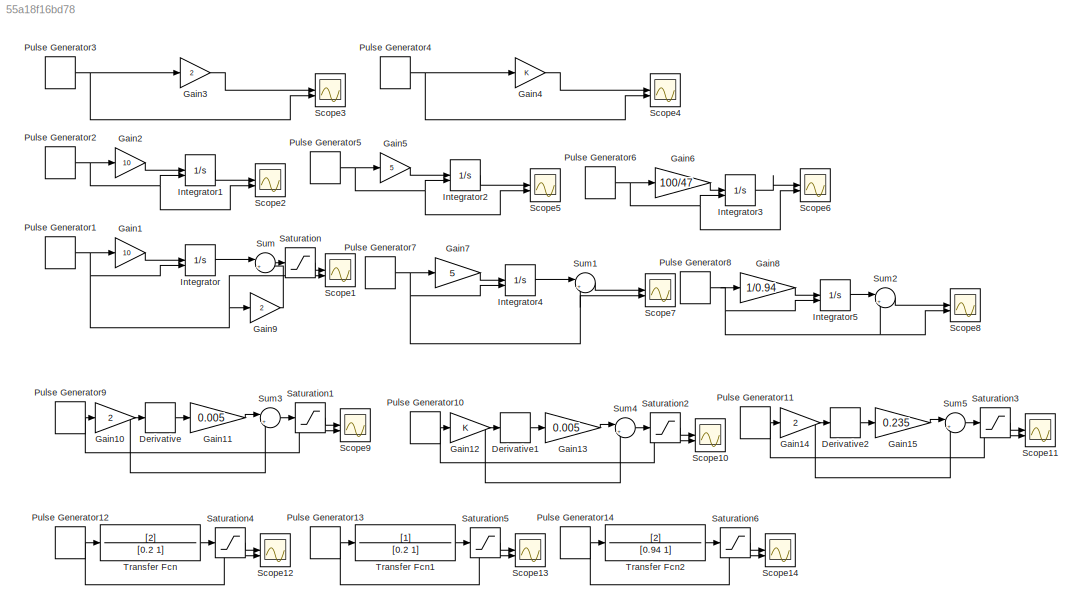
MODEL slx_55a18f16bd78
KIND model
CONFIG AbsTol = auto
CONFIG EnableMultiTasking = off
CONFIG FixedStep = auto
CONFIG MaxStep = auto
CONFIG MinStep = auto
CONFIG RelTol = 1e-3
CONFIG SampleTimeConstraint = Unconstrained
CONFIG SolverName = VariableStepAuto
CONFIG StartTime = 0.0
CONFIG StopTime = 40
BLOCK [Derivative] Derivative
BLOCK [Derivative] Derivative1
BLOCK [Derivative] Derivative2
BLOCK [Gain] Gain1
  Gain = 10
BLOCK [Gain] Gain10
  Gain = 2
BLOCK [Gain] Gain11
  Gain = 0.005
BLOCK [Gain] Gain12
BLOCK [Gain] Gain13
  Gain = 0.005
BLOCK [Gain] Gain14
  Gain = 2
BLOCK [Gain] Gain15
  Gain = 0.235
BLOCK [Gain] Gain2
  Gain = 10
BLOCK [Gain] Gain3
  Gain = 2
BLOCK [Gain] Gain4
BLOCK [Gain] Gain5
  Gain = 5
BLOCK [Gain] Gain6
  Gain = 100/47
BLOCK [Gain] Gain7
  Gain = 5
BLOCK [Gain] Gain8
  Gain = 1/0.94
BLOCK [Gain] Gain9
  Gain = 2
BLOCK [Integrator] Integrator
  ExternalReset = falling
  LimitOutput = on
  UpperSaturationLimit = 10
BLOCK [Integrator] Integrator1
  ExternalReset = falling
  LimitOutput = on
  UpperSaturationLimit = 9
BLOCK [Integrator] Integrator2
  ExternalReset = falling
  LimitOutput = on
  UpperSaturationLimit = 9
BLOCK [Integrator] Integrator3
  ExternalReset = falling
  LimitOutput = on
  UpperSaturationLimit = 9
BLOCK [Integrator] Integrator4
  ExternalReset = falling
  LimitOutput = on
  UpperSaturationLimit = 9
BLOCK [Integrator] Integrator5
  ExternalReset = falling
  LimitOutput = on
  UpperSaturationLimit = 9
BLOCK [DiscretePulseGenerator] Pulse Generator1
  Amplitude = 5
  PhaseDelay = 0.1
  PulseType = Time based
  PulseWidth = 10
BLOCK [DiscretePulseGenerator] Pulse Generator10
  Amplitude = 5
  Period = 1
  PhaseDelay = 0.2
  PulseType = Time based
  PulseWidth = 50
BLOCK [DiscretePulseGenerator] Pulse Generator11
  Amplitude = 5
  Period = 1
  PhaseDelay = 0.5
  PulseType = Time based
  PulseWidth = 50
BLOCK [DiscretePulseGenerator] Pulse Generator12
  Amplitude = 5
  Period = 9.1
  PhaseDelay = 2
  PulseType = Time based
  PulseWidth = 90
BLOCK [DiscretePulseGenerator] Pulse Generator13
  Amplitude = 5
  Period = 9.1
  PhaseDelay = 2
  PulseType = Time based
  PulseWidth = 90
BLOCK [DiscretePulseGenerator] Pulse Generator14
  Amplitude = 5
  Period = 9.1
  PhaseDelay = 2
  PulseType = Time based
  PulseWidth = 50
BLOCK [DiscretePulseGenerator] Pulse Generator2
  Amplitude = 5
  Period = 1
  PulseType = Time based
  PulseWidth = 50
BLOCK [DiscretePulseGenerator] Pulse Generator3
  Amplitude = 5
  Period = 1
  PulseType = Time based
  PulseWidth = 50
BLOCK [DiscretePulseGenerator] Pulse Generator4
  Amplitude = 5
  Period = 1
  PulseType = Time based
  PulseWidth = 50
BLOCK [DiscretePulseGenerator] Pulse Generator5
  Amplitude = 5
  Period = 1
  PulseType = Time based
  PulseWidth = 50
BLOCK [DiscretePulseGenerator] Pulse Generator6
  Amplitude = 5
  Period = 1
  PulseType = Time based
  PulseWidth = 50
BLOCK [DiscretePulseGenerator] Pulse Generator7
  Amplitude = 5
  PhaseDelay = 0.1
  PulseType = Time based
  PulseWidth = 10
BLOCK [DiscretePulseGenerator] Pulse Generator8
  Amplitude = 5
  PhaseDelay = 0.1
  PulseType = Time based
  PulseWidth = 10
BLOCK [DiscretePulseGenerator] Pulse Generator9
  Amplitude = 5
  Period = 1
  PhaseDelay = 0.2
  PulseType = Time based
  PulseWidth = 50
BLOCK [Saturate] Saturation
  UpperLimit = 9
BLOCK [Saturate] Saturation1
  LowerLimit = -100
  UpperLimit = 9
BLOCK [Saturate] Saturation2
  LowerLimit = -100
  UpperLimit = 9
BLOCK [Saturate] Saturation3
  UpperLimit = 9
BLOCK [Saturate] Saturation4
  LowerLimit = -100
  UpperLimit = 9
BLOCK [Saturate] Saturation5
  LowerLimit = -100
  UpperLimit = 9
BLOCK [Saturate] Saturation6
  LowerLimit = -100
  UpperLimit = 9
BLOCK [Scope] Scope1
  Floating = off
  NumInputPorts = 2
  ScopeSpecificationString = Simulink.scopes.TimeScopeBlockCfg('CurrentConfiguration', extmgr.ConfigurationSet(extmgr.Configuration('Core','General UI',true),extmgr.Configuration('Core','Source UI',true),extmgr.Configuration('Sources','WiredSimulink',true,'DataLoggingVariableName','ScopeData1'),extmgr.Configuration('Visuals','Time Domain',true,'SerializedDisplays',{struct('MinYLimReal','-1.125','MaxYLimReal','10.125','YLabelR...<+1409ch>
BLOCK [Scope] Scope10
  Floating = off
  NumInputPorts = 2
  ScopeSpecificationString = Simulink.scopes.TimeScopeBlockCfg('CurrentConfiguration', extmgr.ConfigurationSet(extmgr.Configuration('Core','General UI',true),extmgr.Configuration('Core','Source UI',true),extmgr.Configuration('Sources','WiredSimulink',true,'DataLoggingVariableName','ScopeData9'),extmgr.Configuration('Visuals','Time Domain',true,'SerializedDisplays',{struct('MinYLimReal','-1.80059','MaxYLimReal','10.20007','YLa...<+1423ch>
BLOCK [Scope] Scope11
  Floating = off
  NumInputPorts = 2
  ScopeSpecificationString = Simulink.scopes.TimeScopeBlockCfg('CurrentConfiguration', extmgr.ConfigurationSet(extmgr.Configuration('Core','General UI',true),extmgr.Configuration('Core','Source UI',true),extmgr.Configuration('Sources','WiredSimulink',true,'DataLoggingVariableName','ScopeData10'),extmgr.Configuration('Visuals','Time Domain',true,'SerializedDisplays',{struct('MinYLimReal','-1.6875','MaxYLimReal','10.1875','YLab...<+1418ch>
BLOCK [Scope] Scope12
  Floating = off
  NumInputPorts = 2
  ScopeSpecificationString = Simulink.scopes.TimeScopeBlockCfg('CurrentConfiguration', extmgr.ConfigurationSet(extmgr.Configuration('Core','General UI',true),extmgr.Configuration('Core','Source UI',true),extmgr.Configuration('Sources','WiredSimulink',true,'DataLoggingVariableName','ScopeData11'),extmgr.Configuration('Visuals','Time Domain',true,'SerializedDisplays',{struct('MinYLimReal','-1.125','MaxYLimReal','10.125','YLabel...<+1412ch>
BLOCK [Scope] Scope13
  Floating = off
  NumInputPorts = 2
  ScopeSpecificationString = Simulink.scopes.TimeScopeBlockCfg('CurrentConfiguration', extmgr.ConfigurationSet(extmgr.Configuration('Core','General UI',true),extmgr.Configuration('Core','Source UI',true),extmgr.Configuration('Sources','WiredSimulink',true,'DataLoggingVariableName','ScopeData12'),extmgr.Configuration('Visuals','Time Domain',true,'SerializedDisplays',{struct('MinYLimReal','-0.625','MaxYLimReal','5.625','YLabelR...<+1408ch>
BLOCK [Scope] Scope14
  Floating = off
  NumInputPorts = 2
  ScopeSpecificationString = Simulink.scopes.TimeScopeBlockCfg('CurrentConfiguration', extmgr.ConfigurationSet(extmgr.Configuration('Core','General UI',true),extmgr.Configuration('Core','Source UI',true),extmgr.Configuration('Sources','WiredSimulink',true,'DataLoggingVariableName','ScopeData13'),extmgr.Configuration('Visuals','Time Domain',true,'SerializedDisplays',{struct('MinYLimReal','-1.125','MaxYLimReal','10.125','YLabel...<+1412ch>
BLOCK [Scope] Scope2
  Floating = off
  NumInputPorts = 2
  ScopeSpecificationString = Simulink.scopes.TimeScopeBlockCfg('CurrentConfiguration', extmgr.ConfigurationSet(extmgr.Configuration('Core','General UI',true),extmgr.Configuration('Core','Source UI',true),extmgr.Configuration('Sources','WiredSimulink',true),extmgr.Configuration('Visuals','Time Domain',true,'SerializedDisplays',{struct('MinYLimReal','-1.125','MaxYLimReal','10.125','YLabelReal','','MinYLimMag','0.00000','MaxYLim...<+1371ch>
BLOCK [Scope] Scope3
  Floating = off
  NumInputPorts = 2
  ScopeSpecificationString = Simulink.scopes.TimeScopeBlockCfg('CurrentConfiguration', extmgr.ConfigurationSet(extmgr.Configuration('Core','General UI',true),extmgr.Configuration('Core','Source UI',true),extmgr.Configuration('Sources','WiredSimulink',true,'DataLoggingVariableName','ScopeData2'),extmgr.Configuration('Visuals','Time Domain',true,'SerializedDisplays',{struct('MinYLimReal','-1.125','MaxYLimReal','10.125','YLabelR...<+1380ch>
BLOCK [Scope] Scope4
  Floating = off
  NumInputPorts = 2
  ScopeSpecificationString = Simulink.scopes.TimeScopeBlockCfg('CurrentConfiguration', extmgr.ConfigurationSet(extmgr.Configuration('Core','General UI',true),extmgr.Configuration('Core','Source UI',true),extmgr.Configuration('Sources','WiredSimulink',true,'DataLoggingVariableName','ScopeData3'),extmgr.Configuration('Visuals','Time Domain',true,'SerializedDisplays',{struct('MinYLimReal','-0.625','MaxYLimReal','5.625','YLabelRe...<+1400ch>
BLOCK [Scope] Scope5
  Floating = off
  NumInputPorts = 2
  ScopeSpecificationString = Simulink.scopes.TimeScopeBlockCfg('CurrentConfiguration', extmgr.ConfigurationSet(extmgr.Configuration('Core','General UI',true),extmgr.Configuration('Core','Source UI',true),extmgr.Configuration('Sources','WiredSimulink',true,'DataLoggingVariableName','ScopeData4'),extmgr.Configuration('Visuals','Time Domain',true,'SerializedDisplays',{struct('MinYLimReal','-1.125','MaxYLimReal','10.125','YLabelR...<+1410ch>
BLOCK [Scope] Scope6
  Floating = off
  NumInputPorts = 2
  ScopeSpecificationString = Simulink.scopes.TimeScopeBlockCfg('CurrentConfiguration', extmgr.ConfigurationSet(extmgr.Configuration('Core','General UI',true),extmgr.Configuration('Core','Source UI',true),extmgr.Configuration('Sources','WiredSimulink',true,'DataLoggingVariableName','ScopeData5'),extmgr.Configuration('Visuals','Time Domain',true,'SerializedDisplays',{struct('MinYLimReal','-0.6516','MaxYLimReal','5.86436','YLabe...<+1416ch>
BLOCK [Scope] Scope7
  Floating = off
  NumInputPorts = 2
  ScopeSpecificationString = Simulink.scopes.TimeScopeBlockCfg('CurrentConfiguration', extmgr.ConfigurationSet(extmgr.Configuration('Core','General UI',true),extmgr.Configuration('Core','Source UI',true),extmgr.Configuration('Sources','WiredSimulink',true,'DataLoggingVariableName','ScopeData6'),extmgr.Configuration('Visuals','Time Domain',true,'SerializedDisplays',{struct('MinYLimReal','-1.25','MaxYLimReal','11.25','YLabelRea...<+1398ch>
BLOCK [Scope] Scope8
  Floating = off
  NumInputPorts = 2
  ScopeSpecificationString = Simulink.scopes.TimeScopeBlockCfg('CurrentConfiguration', extmgr.ConfigurationSet(extmgr.Configuration('Core','General UI',true),extmgr.Configuration('Core','Source UI',true),extmgr.Configuration('Sources','WiredSimulink',true,'DataLoggingVariableName','ScopeData7'),extmgr.Configuration('Visuals','Time Domain',true,'SerializedDisplays',{struct('MinYLimReal','-0.75798','MaxYLimReal','6.82181','YLab...<+1411ch>
BLOCK [Scope] Scope9
  Floating = off
  NumInputPorts = 2
  ScopeSpecificationString = Simulink.scopes.TimeScopeBlockCfg('CurrentConfiguration', extmgr.ConfigurationSet(extmgr.Configuration('Core','General UI',true),extmgr.Configuration('Core','Source UI',true),extmgr.Configuration('Sources','WiredSimulink',true,'DataLoggingVariableName','ScopeData8'),extmgr.Configuration('Visuals','Time Domain',true,'SerializedDisplays',{struct('MinYLimReal','-2.47619','MaxYLimReal','10.27513','YLa...<+1422ch>
BLOCK [Sum] Sum
  Inputs = |++
BLOCK [Sum] Sum1
  Inputs = |++
BLOCK [Sum] Sum2
  Inputs = |++
BLOCK [Sum] Sum3
  Inputs = |++
BLOCK [Sum] Sum4
  Inputs = |++
BLOCK [Sum] Sum5
  Inputs = |++
BLOCK [TransferFcn] Transfer Fcn
  Denominator = [0.2 1]
  Numerator = [2]
BLOCK [TransferFcn] Transfer Fcn1
  Denominator = [0.2 1]
BLOCK [TransferFcn] Transfer Fcn2
  Denominator = [0.94 1]
  Numerator = [2]
LINE Derivative1:1 -> Gain13:1
LINE Derivative2:1 -> Gain15:1
LINE Derivative:1 -> Gain11:1
NET Gain10:1 -> Derivative:1, Sum3:2
LINE Gain11:1 -> Sum3:1
NET Gain12:1 -> Derivative1:1, Sum4:2
LINE Gain13:1 -> Sum4:1
NET Gain14:1 -> Derivative2:1, Sum5:2
LINE Gain15:1 -> Sum5:1
LINE Gain1:1 -> Integrator:1
LINE Gain2:1 -> Integrator1:1
LINE Gain3:1 -> Scope3:1
LINE Gain4:1 -> Scope4:1
LINE Gain5:1 -> Integrator2:1
LINE Gain6:1 -> Integrator3:1
LINE Gain7:1 -> Integrator4:1
LINE Gain8:1 -> Integrator5:1
LINE Gain9:1 -> Sum:2
LINE Integrator1:1 -> Scope2:1
LINE Integrator2:1 -> Scope5:1
LINE Integrator3:1 -> Scope6:1
LINE Integrator4:1 -> Sum1:1
LINE Integrator5:1 -> Sum2:1
LINE Integrator:1 -> Sum:1
NET Pulse Generator10:1 -> Gain12:1, Scope10:2
NET Pulse Generator11:1 -> Gain14:1, Scope11:2
NET Pulse Generator12:1 -> Scope12:2, Transfer Fcn:1
NET Pulse Generator13:1 -> Scope13:2, Transfer Fcn1:1
NET Pulse Generator14:1 -> Scope14:2, Transfer Fcn2:1
NET Pulse Generator1:1 -> Gain1:1, Gain9:1, Integrator:2, Scope1:2
NET Pulse Generator2:1 -> Gain2:1, Integrator1:2, Scope2:2
NET Pulse Generator3:1 -> Gain3:1, Scope3:2
NET Pulse Generator4:1 -> Gain4:1, Scope4:2
NET Pulse Generator5:1 -> Gain5:1, Integrator2:2, Scope5:2
NET Pulse Generator6:1 -> Gain6:1, Integrator3:2, Scope6:2
NET Pulse Generator7:1 -> Gain7:1, Integrator4:2, Scope7:2, Sum1:2
NET Pulse Generator8:1 -> Gain8:1, Integrator5:2, Scope8:2, Sum2:2
NET Pulse Generator9:1 -> Gain10:1, Scope9:2
LINE Saturation1:1 -> Scope9:1
LINE Saturation2:1 -> Scope10:1
LINE Saturation3:1 -> Scope11:1
LINE Saturation4:1 -> Scope12:1
LINE Saturation5:1 -> Scope13:1
LINE Saturation6:1 -> Scope14:1
LINE Saturation:1 -> Scope1:1
LINE Sum1:1 -> Scope7:1
LINE Sum2:1 -> Scope8:1
LINE Sum3:1 -> Saturation1:1
LINE Sum4:1 -> Saturation2:1
LINE Sum5:1 -> Saturation3:1
LINE Sum:1 -> Saturation:1
LINE Transfer Fcn1:1 -> Saturation5:1
LINE Transfer Fcn2:1 -> Saturation6:1
LINE Transfer Fcn:1 -> Saturation4:1
note: NET lines group one-source signal fan-out (src -> all destinations, sorted); 1:1 wires keep LINE
